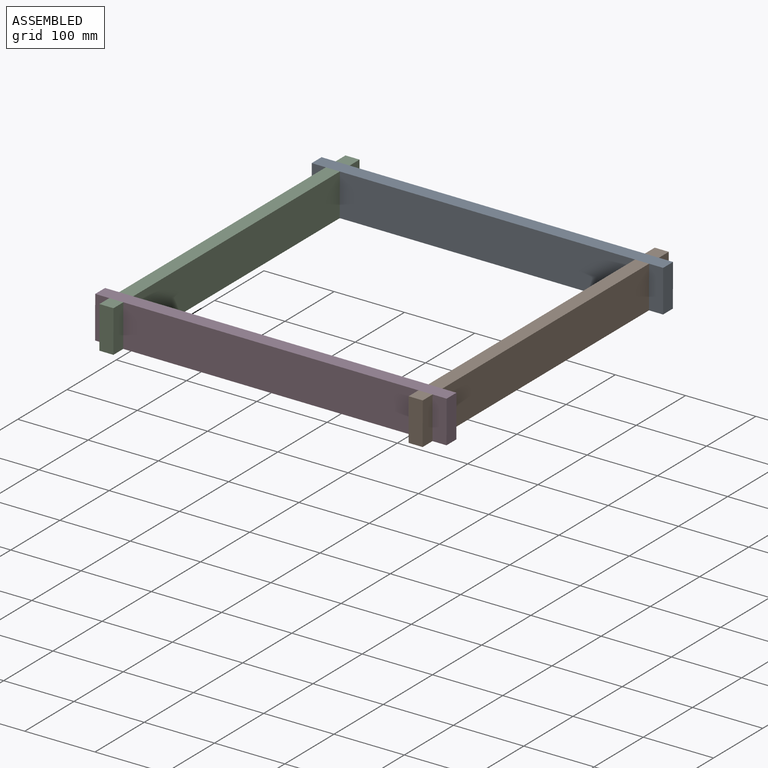
[diagram: assembled view]
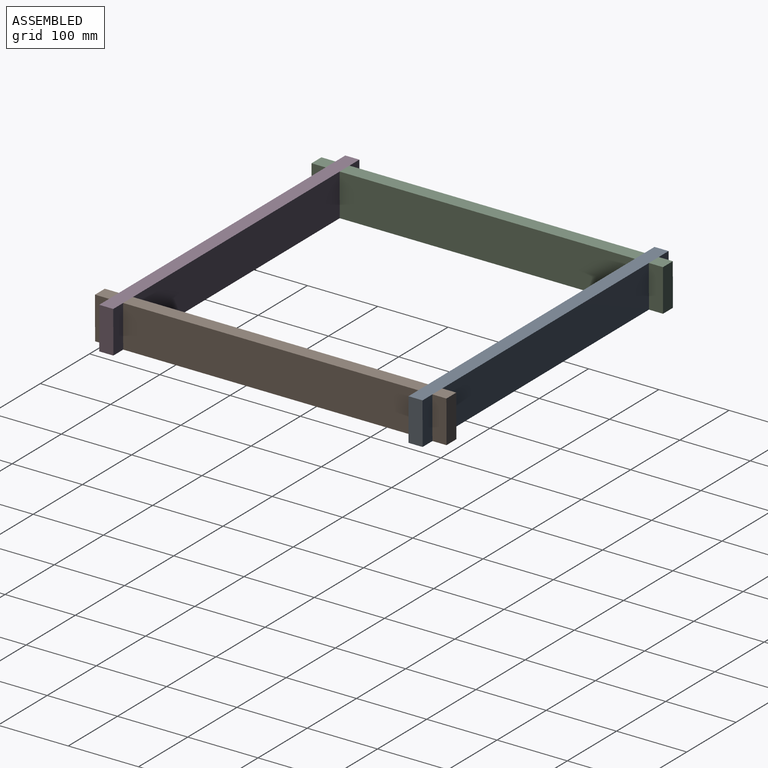
[diagram: assembled view, second angle]
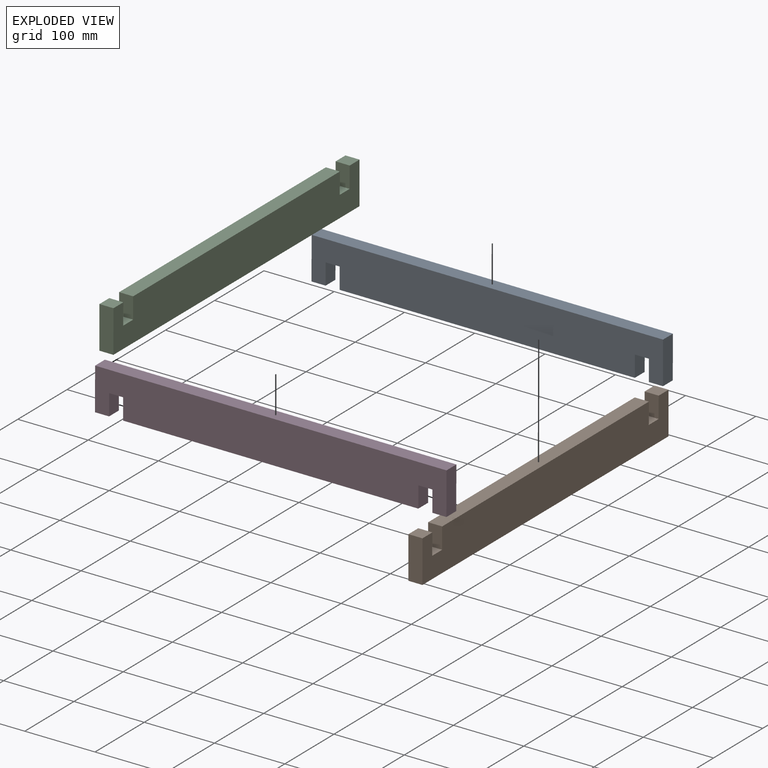
[diagram: exploded view]
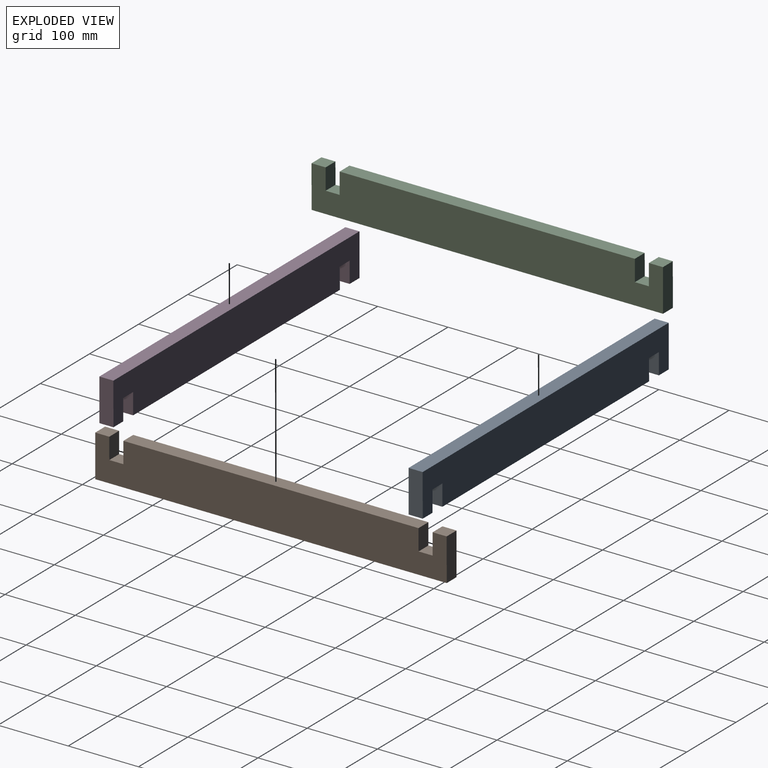
[diagram: exploded view, second angle]
ASSEMBLY  parts=4 mates=3
PART A: 14 faces, bbox 500x20x60 mm
  f0: plane 500x20mm, normal (0,0,1), area 10000mm2, adj f1,f7,f8,f9
  f1: plane 60x20mm, normal (-1,0,0), area 1200mm2, adj f0,f2,f7,f8
  f2: plane 20x20mm, normal (0,0,-1), area 400mm2, adj f1,f3,f7,f8
  f3: plane 30x20mm, normal (1,0,0), area 600mm2, adj f2,f4,f7,f8
  f4: plane 20x20mm, normal (0,0,-1), area 400mm2, adj f3,f5,f7,f8
  f5: plane 30x20mm, normal (-1,0,0), area 600mm2, adj f4,f6,f7,f8
  f6: plane 420x20mm, normal (0,0,-1), area 8400mm2, adj f5,f7,f8,f13
  f7: plane 500x60mm, normal (0,-1,0), area 28800mm2, adj f0,f1,f2,f3,f4,f5,f6,f9
  f8: plane 500x60mm, normal (0,1,0), area 28800mm2, adj f0,f1,f2,f3,f4,f5,f6,f9
  f9: plane 60x20mm, normal (1,0,0), area 1200mm2, adj f0,f7,f8,f10
  f10: plane 20x20mm, normal (0,0,-1), area 400mm2, adj f7,f8,f9,f11
  f11: plane 30x20mm, normal (-1,0,0), area 600mm2, adj f7,f8,f10,f12
  f12: plane 20x20mm, normal (0,0,-1), area 400mm2, adj f7,f8,f11,f13
  f13: plane 30x20mm, normal (1,0,0), area 600mm2, adj f6,f7,f8,f12
PART B: same geometry as A
PART C: same geometry as A
PART D: same geometry as A
PLACE A rot(axis=(0.12,0.99,0.02),0.1deg) t=(130.35,245.36,-11.21)mm
PLACE B rot(axis=(0.71,-0.71,0),179.9deg) t=(590.41,265.37,20.1)mm
PLACE C rot(axis=(-0.71,-0.71,0),179.9deg) t=(170.44,-234.65,20.83)mm
PLACE D rot(axis=(0.12,0.99,0.02),0.1deg) t=(130.37,-194.64,-11.32)mm
MATE fastened C.f12 <-> A.f4  axis (0,0,1) through (160.38,235.36,4.85)mm
MATE fastened D.f4 <-> C.f4  axis (0,0,-1) through (160.4,-204.64,4.74)mm
MATE fastened D.f12 <-> B.f12  axis (0,0,-1) through (600.4,-204.62,3.83)mm
